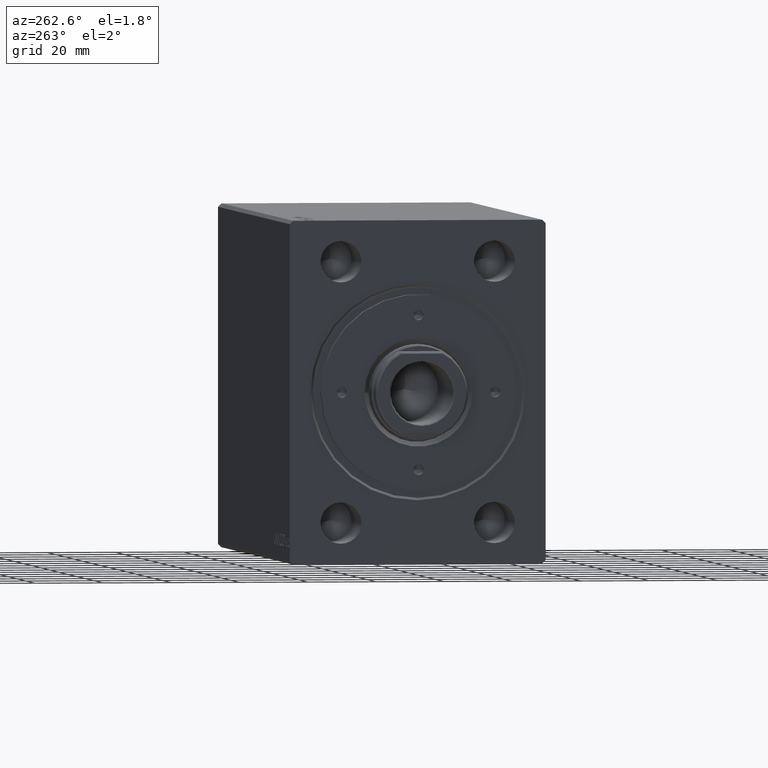
[diagram: clean part render]
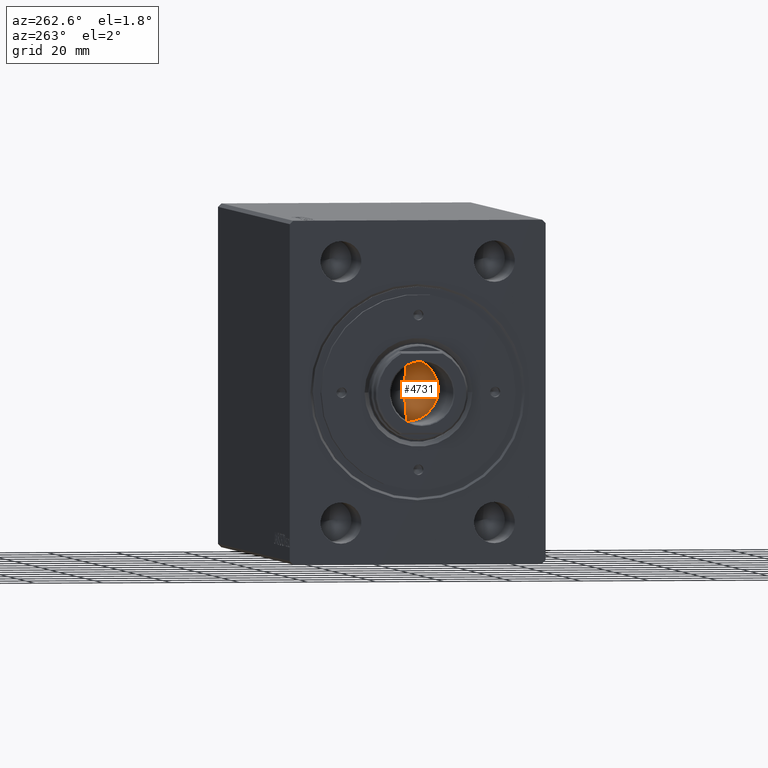
[diagram: same view with one face highlighted and labeled with its STEP entity id]
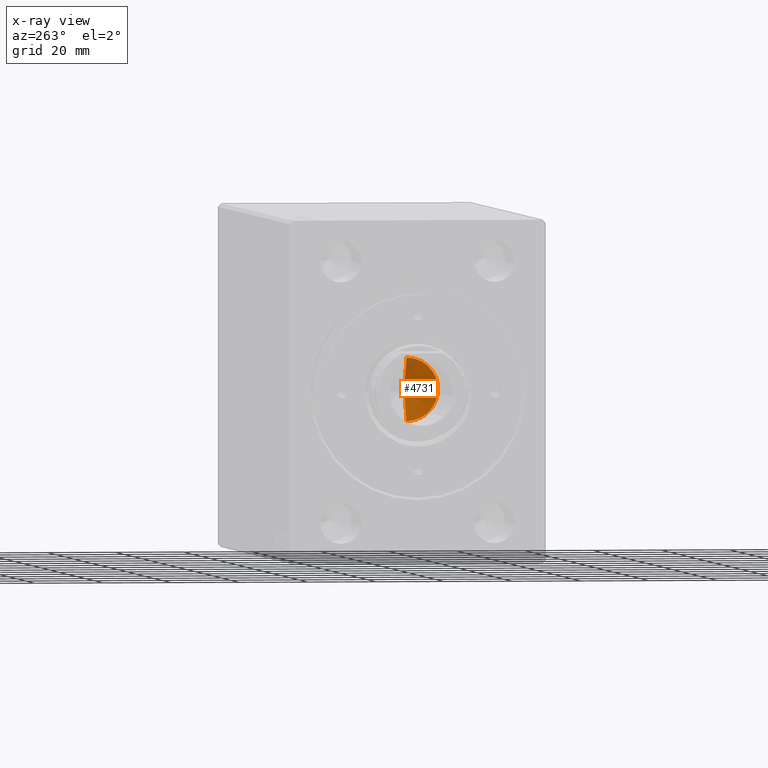
[diagram: x-ray of the same camera — body ghosted, the highlighted face saturated]
A machine part, auxiliary view. The second image highlights one B-rep face of the part: STEP entity #4731.
The next image is the same camera in x-ray: the body ghosted, the highlighted face saturated — about 4% of this face is hidden behind the body in this view.
In plain terms, the highlighted conical surface has half-angle 59 deg.
Its self-contained STEP definition (entity closure, byte-faithful):
#112 = AXIS2_PLACEMENT_3D ( 'NONE', #13103, #36686, #20214 ) ;
#249 = CARTESIAN_POINT ( 'NONE',  ( -1.046994375366439223E-14, 0.000000000000000000, 113.6420392739950671 ) ) ;
#362 = EDGE_CURVE ( 'NONE', #13419, #36836, #31052, .T. ) ;
#795 = DIRECTION ( 'NONE',  ( -0.8571673007021117785, 1.049727191138617956E-16, 0.5150380749100550437 ) ) ;
#835 = FACE_OUTER_BOUND ( 'NONE', #37285, .T. ) ;
#1867 = VECTOR ( 'NONE', #795, 1000.000000000000000 ) ;
#4731 = ADVANCED_FACE ( 'NONE', ( #835 ), #38196, .F. ) ;
#5290 = LINE ( 'NONE', #42444, #27791 ) ;
#5946 = CARTESIAN_POINT ( 'NONE',  ( 9.249999999999994671, 0.000000000000000000, 119.2000000000000028 ) ) ;
#10768 = CIRCLE ( 'NONE', #112, 9.249999999999994671 ) ;
#11307 = DIRECTION ( 'NONE',  ( -0.000000000000000000, -0.000000000000000000, 1.000000000000000000 ) ) ;
#11921 = AXIS2_PLACEMENT_3D ( 'NONE', #37337, #11307, #41539 ) ;
#12766 = ORIENTED_EDGE ( 'NONE', *, *, #19907, .T. ) ;
#13103 = CARTESIAN_POINT ( 'NONE',  ( 0.000000000000000000, 0.000000000000000000, 119.2000000000000028 ) ) ;
#13419 = VERTEX_POINT ( 'NONE', #249 ) ;
#16296 = ORIENTED_EDGE ( 'NONE', *, *, #20023, .F. ) ;
#19907 = EDGE_CURVE ( 'NONE', #36836, #35421, #10768, .T. ) ;
#20023 = EDGE_CURVE ( 'NONE', #13419, #35421, #5290, .T. ) ;
#20214 = DIRECTION ( 'NONE',  ( 1.000000000000000000, 0.000000000000000000, 0.000000000000000000 ) ) ;
#20341 = CARTESIAN_POINT ( 'NONE',  ( -9.249999999999994671, 1.132798289211300909E-15, 119.2000000000000028 ) ) ;
#27791 = VECTOR ( 'NONE', #39989, 1000.000000000000000 ) ;
#31052 = LINE ( 'NONE', #34826, #1867 ) ;
#34826 = CARTESIAN_POINT ( 'NONE',  ( -9.249999999999994671, 1.132798289211300909E-15, 119.2000000000000028 ) ) ;
#35421 = VERTEX_POINT ( 'NONE', #5946 ) ;
#36686 = DIRECTION ( 'NONE',  ( -0.000000000000000000, -0.000000000000000000, 1.000000000000000000 ) ) ;
#36836 = VERTEX_POINT ( 'NONE', #20341 ) ;
#37285 = EDGE_LOOP ( 'NONE', ( #16296, #37836, #12766 ) ) ;
#37337 = CARTESIAN_POINT ( 'NONE',  ( 0.000000000000000000, 0.000000000000000000, 119.2000000000000028 ) ) ;
#37836 = ORIENTED_EDGE ( 'NONE', *, *, #362, .T. ) ;
#38196 = CONICAL_SURFACE ( 'NONE', #11921, 9.249999999999994671, 1.029744258676653423 ) ;
#39989 = DIRECTION ( 'NONE',  ( 0.8571673007021117785, 0.000000000000000000, 0.5150380749100550437 ) ) ;
#41539 = DIRECTION ( 'NONE',  ( 1.000000000000000000, 0.000000000000000000, 0.000000000000000000 ) ) ;
#42444 = CARTESIAN_POINT ( 'NONE',  ( 9.249999999999994671, 0.000000000000000000, 119.2000000000000028 ) ) ;